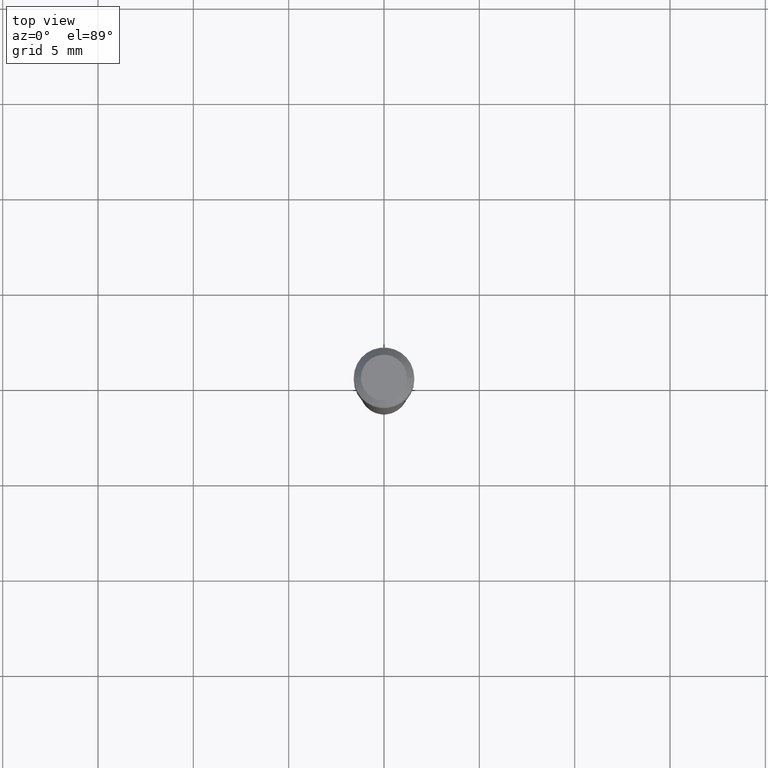
[diagram: clean part render]
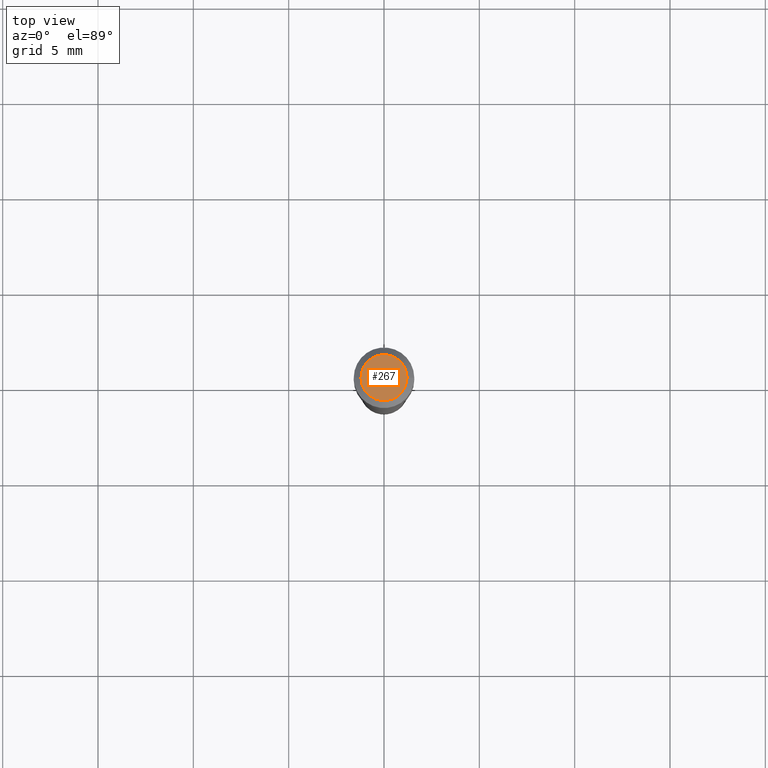
[diagram: same view with one face highlighted and labeled with its STEP entity id]
A machine part, top view. The second image highlights one B-rep face of the part: STEP entity #267.
In plain terms, the highlighted planar face has unit normal (0, -0, -1).
Its self-contained STEP definition (entity closure, byte-faithful):
#19 = DIRECTION ( 'NONE',  ( -2.445468806185136597E-29, 3.491481338843145583E-15, 1.000000000000000000 ) ) ;
#23 = DIRECTION ( 'NONE',  ( 1.000000000000000000, -6.982962677686267499E-15, 4.884662768193073002E-29 ) ) ;
#61 = CARTESIAN_POINT ( 'NONE',  ( 3.316907271900976096E-16, 0.04749999999999999362, -1.227548324517800049E-16 ) ) ;
#68 = FACE_OUTER_BOUND ( 'NONE', #151, .T. ) ;
#74 = AXIS2_PLACEMENT_3D ( 'NONE', #209, #92, #23 ) ;
#92 = DIRECTION ( 'NONE',  ( -2.445468806185136597E-29, 3.491481338843145583E-15, 1.000000000000000000 ) ) ;
#127 = AXIS2_PLACEMENT_3D ( 'NONE', #61, #300, #131 ) ;
#131 = DIRECTION ( 'NONE',  ( -1.000000000000000000, 6.982962677686265922E-15, -4.876176775795935793E-29 ) ) ;
#138 = AXIS2_PLACEMENT_3D ( 'NONE', #458, #19, #316 ) ;
#140 = CIRCLE ( 'NONE', #138, 0.04749999999999999362 ) ;
#147 = VERTEX_POINT ( 'NONE', #180 ) ;
#151 = EDGE_LOOP ( 'NONE', ( #415, #264 ) ) ;
#180 = CARTESIAN_POINT ( 'NONE',  ( 0.04749999999999999362, -4.035134999187576651E-16, 8.618106228654135916E-17 ) ) ;
#209 = CARTESIAN_POINT ( 'NONE',  ( -2.107530995056288845E-45, 3.008995707351289501E-31, 8.618106228653878303E-17 ) ) ;
#215 = CARTESIAN_POINT ( 'NONE',  ( -0.04749999999999999362, 3.578768372314211985E-16, 8.618106228653636715E-17 ) ) ;
#246 = EDGE_CURVE ( 'NONE', #406, #147, #291, .T. ) ;
#264 = ORIENTED_EDGE ( 'NONE', *, *, #289, .T. ) ;
#267 = ADVANCED_FACE ( 'NONE', ( #68 ), #325, .F. ) ;
#289 = EDGE_CURVE ( 'NONE', #147, #406, #140, .T. ) ;
#291 = CIRCLE ( 'NONE', #74, 0.04749999999999999362 ) ;
#300 = DIRECTION ( 'NONE',  ( 2.438088387897960049E-29, -3.491481338843145188E-15, -1.000000000000000000 ) ) ;
#316 = DIRECTION ( 'NONE',  ( 1.000000000000000000, -6.982962677686267499E-15, 4.884662768193073002E-29 ) ) ;
#325 = PLANE ( 'NONE',  #127 ) ;
#406 = VERTEX_POINT ( 'NONE', #215 ) ;
#415 = ORIENTED_EDGE ( 'NONE', *, *, #246, .T. ) ;
#458 = CARTESIAN_POINT ( 'NONE',  ( -2.107530995056288845E-45, 3.008995707351289501E-31, 8.618106228653878303E-17 ) ) ;